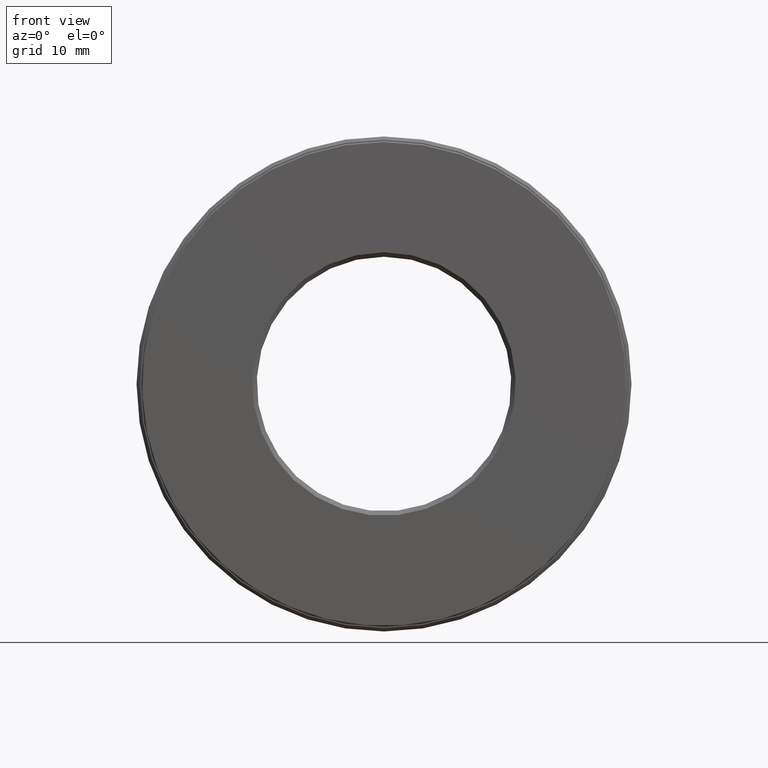
[diagram: clean part render]
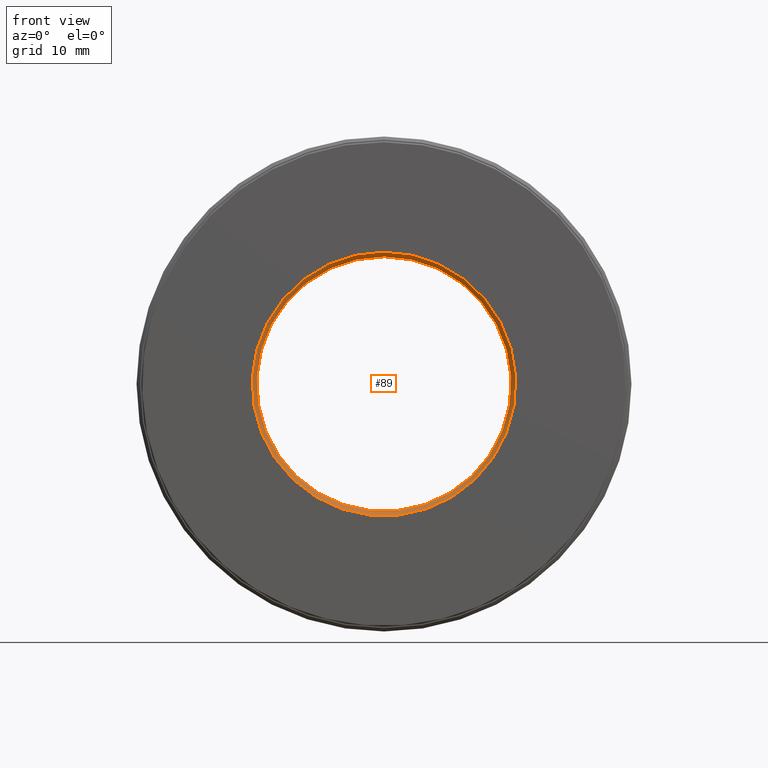
[diagram: same view with one face highlighted and labeled with its STEP entity id]
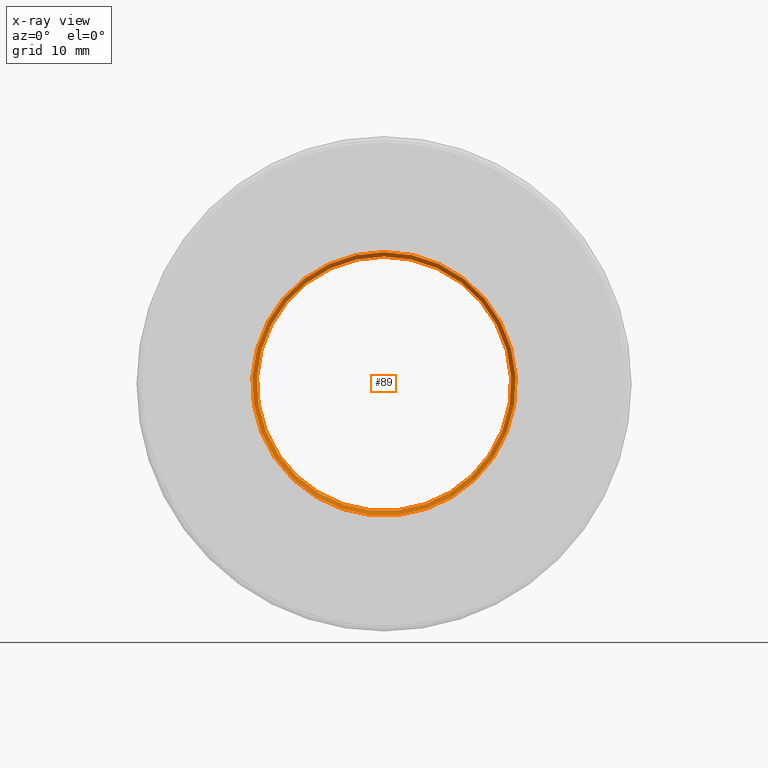
[diagram: x-ray of the same camera — body ghosted, the highlighted face saturated]
A machine part, front view. The second image highlights one B-rep face of the part: STEP entity #89.
The next image is the same camera in x-ray: the body ghosted, the highlighted face saturated — about 0% of this face is hidden behind the body in this view.
In plain terms, the highlighted conical surface has half-angle 45 deg.
Its self-contained STEP definition (entity closure, byte-faithful):
#8 = CIRCLE ( 'NONE', #367, 0.5624999999999998900 ) ;
#48 = DIRECTION ( 'NONE',  ( 0.0000000000000000000, -1.000000000000000000, 0.0000000000000000000 ) ) ;
#58 = DIRECTION ( 'NONE',  ( -0.0000000000000000000, 1.000000000000000000, -0.0000000000000000000 ) ) ;
#89 = ADVANCED_FACE ( 'NONE', ( #126, #221 ), #586, .F. ) ;
#126 = FACE_OUTER_BOUND ( 'NONE', #444, .T. ) ;
#167 = ORIENTED_EDGE ( 'NONE', *, *, #226, .F. ) ;
#182 = DIRECTION ( 'NONE',  ( 0.0000000000000000000, 0.0000000000000000000, -1.000000000000000000 ) ) ;
#185 = AXIS2_PLACEMENT_3D ( 'NONE', #223, #48, #182 ) ;
#206 = VERTEX_POINT ( 'NONE', #492 ) ;
#221 = FACE_BOUND ( 'NONE', #500, .T. ) ;
#223 = CARTESIAN_POINT ( 'NONE',  ( 0.0000000000000000000, 0.02000000000000019800, 0.0000000000000000000 ) ) ;
#226 = EDGE_CURVE ( 'NONE', #557, #557, #269, .T. ) ;
#260 = ORIENTED_EDGE ( 'NONE', *, *, #383, .T. ) ;
#269 = CIRCLE ( 'NONE', #327, 0.5825000000000000200 ) ;
#327 = AXIS2_PLACEMENT_3D ( 'NONE', #606, #58, #462 ) ;
#367 = AXIS2_PLACEMENT_3D ( 'NONE', #432, #572, #529 ) ;
#383 = EDGE_CURVE ( 'NONE', #206, #206, #8, .T. ) ;
#394 = CARTESIAN_POINT ( 'NONE',  ( 0.0000000000000000000, 3.414809992080329000E-017, 0.5825000000000000200 ) ) ;
#432 = CARTESIAN_POINT ( 'NONE',  ( 0.0000000000000000000, 0.02000000000000019800, 0.0000000000000000000 ) ) ;
#444 = EDGE_LOOP ( 'NONE', ( #167 ) ) ;
#462 = DIRECTION ( 'NONE',  ( 0.0000000000000000000, 0.0000000000000000000, 1.000000000000000000 ) ) ;
#492 = CARTESIAN_POINT ( 'NONE',  ( 0.0000000000000000000, 0.02000000000000019800, 0.5624999999999998900 ) ) ;
#500 = EDGE_LOOP ( 'NONE', ( #260 ) ) ;
#529 = DIRECTION ( 'NONE',  ( 0.0000000000000000000, 0.0000000000000000000, 1.000000000000000000 ) ) ;
#557 = VERTEX_POINT ( 'NONE', #394 ) ;
#572 = DIRECTION ( 'NONE',  ( -0.0000000000000000000, 1.000000000000000000, -0.0000000000000000000 ) ) ;
#586 = CONICAL_SURFACE ( 'NONE', #185, 0.5624999999999998900, 0.7853981633974457300 ) ;
#606 = CARTESIAN_POINT ( 'NONE',  ( 0.0000000000000000000, 3.414809992080329000E-017, 0.0000000000000000000 ) ) ;